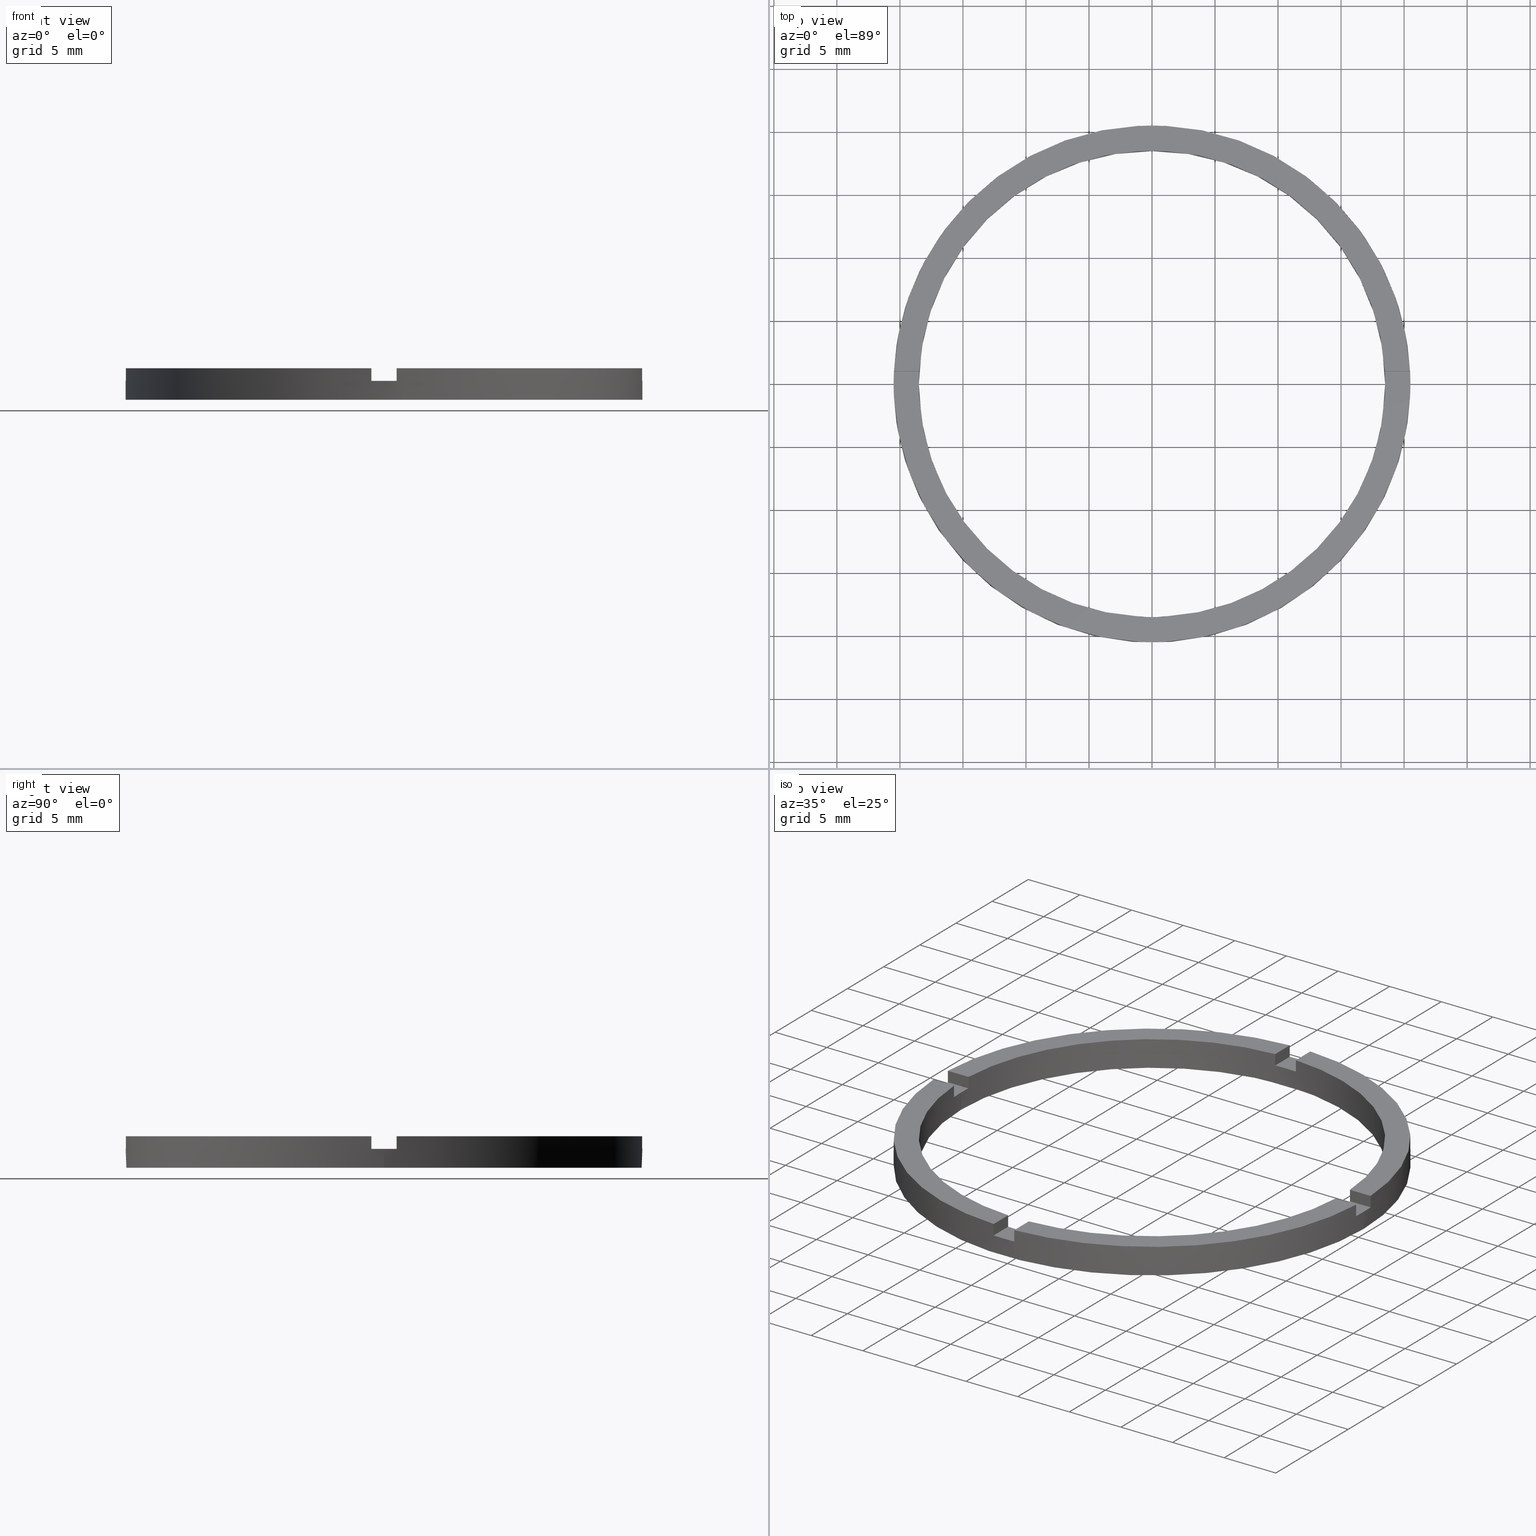
[diagram: canonical four-view strip — front | top / right | iso, engineering-drawing reading convention]
A machine part, canonical four-view strip (front | top / right | iso — engineering-drawing reading convention). The complete STEP part file that produces these views, byte-faithful:
ISO-10303-21;
HEADER;
FILE_DESCRIPTION (( 'STEP AP203' ),
    '1' );
FILE_NAME ('514087.step',
    '2024-12-26T02:36:17',
    ( 'MSI' ),
    ( '' ),
    'SwSTEP 2.0',
    'SolidWorks 2020',
    '' );
FILE_SCHEMA (( 'CONFIG_CONTROL_DESIGN' ));
ENDSEC;

DATA;
#1 = CIRCLE ( 'NONE', #116, 18.50000000000000000 ) ;
#2 = DIRECTION ( 'NONE',  ( 1.000000000000000000, 1.734723475976806848E-16, 0.000000000000000000 ) ) ;
#3 = FACE_OUTER_BOUND ( 'NONE', #505, .T. ) ;
#4 = DIRECTION ( 'NONE',  ( 1.000000000000000000, 0.000000000000000000, 0.000000000000000000 ) ) ;
#5 = CIRCLE ( 'NONE', #503, 20.50000000000000000 ) ;
#6 = DIRECTION ( 'NONE',  ( 1.000000000000000000, 0.000000000000000000, -0.000000000000000000 ) ) ;
#7 = CARTESIAN_POINT ( 'NONE',  ( 0.9999999999998371303, -10.50000000000018119, 2.500000000000000000 ) ) ;
#8 = UNCERTAINTY_MEASURE_WITH_UNIT (LENGTH_MEASURE( 1.000000000000000082E-05 ), #580, 'distance_accuracy_value', 'NONE');
#9 = DIRECTION ( 'NONE',  ( 1.000000000000000000, 0.000000000000000000, 0.000000000000000000 ) ) ;
#10 = CARTESIAN_POINT ( 'NONE',  ( 0.9999999999998382405, -18.47295320191117440, 2.500000000000000000 ) ) ;
#11 = CARTESIAN_POINT ( 'NONE',  ( -10.50000000000018652, -1.000000000000023093, 1.500000000000000000 ) ) ;
#12 = CARTESIAN_POINT ( 'NONE',  ( 0.9999999999999740208, 20.47559522944326815, 2.500000000000000000 ) ) ;
#13 = CARTESIAN_POINT ( 'NONE',  ( -18.47295320191116375, -1.000000000000024425, 2.500000000000000000 ) ) ;
#14 = CARTESIAN_POINT ( 'NONE',  ( -20.47559522944327171, 0.9999999999999753530, 2.500000000000000000 ) ) ;
#15 = CALENDAR_DATE ( 2024, 26, 12 ) ;
#16 = DIRECTION ( 'NONE',  ( -0.000000000000000000, 0.000000000000000000, 1.000000000000000000 ) ) ;
#17 = COORDINATED_UNIVERSAL_TIME_OFFSET ( 8, 0, .AHEAD. ) ;
#18 = EDGE_CURVE ( 'NONE', #702, #478, #737, .T. ) ;
#19 = DIRECTION ( 'NONE',  ( -1.000000000000000000, -4.336808689942017120E-17, 0.000000000000000000 ) ) ;
#20 = DIRECTION ( 'NONE',  ( 0.000000000000000000, 1.000000000000000000, 0.000000000000000000 ) ) ;
#21 = PERSON_AND_ORGANIZATION ( #545, #595 ) ;
#22 = DATE_AND_TIME ( #31, #40 ) ;
#23 = DIRECTION ( 'NONE',  ( -1.000000000000000000, 0.000000000000000000, 0.000000000000000000 ) ) ;
#24 = EDGE_CURVE ( 'NONE', #485, #446, #227, .T. ) ;
#25 = COORDINATED_UNIVERSAL_TIME_OFFSET ( 8, 0, .AHEAD. ) ;
#26 = CARTESIAN_POINT ( 'NONE',  ( 10.49999999999999467, 0.9999999999998412381, 1.500000000000000000 ) ) ;
#27 = LOCAL_TIME ( 10, 36, 17.00000000000000000, #298 ) ;
#28 = CARTESIAN_POINT ( 'NONE',  ( 0.9999999999999744649, 10.50000000000000000, 2.500000000000000000 ) ) ;
#29 = EDGE_CURVE ( 'NONE', #166, #702, #738, .T. ) ;
#30 = AXIS2_PLACEMENT_3D ( 'NONE', #92, #51, #108 ) ;
#31 = CALENDAR_DATE ( 2024, 26, 12 ) ;
#32 = CARTESIAN_POINT ( 'NONE',  ( -20.50000000000000000, 0.000000000000000000, 2.500000000000000000 ) ) ;
#33 = COORDINATED_UNIVERSAL_TIME_OFFSET ( 8, 0, .AHEAD. ) ;
#34 = DIRECTION ( 'NONE',  ( 1.000000000000000000, 0.000000000000000000, 0.000000000000000000 ) ) ;
#35 = CARTESIAN_POINT ( 'NONE',  ( -1.000000000000025535, 20.47559522944326815, 2.500000000000000000 ) ) ;
#36 = CARTESIAN_POINT ( 'NONE',  ( 0.000000000000000000, 0.000000000000000000, 2.500000000000000000 ) ) ;
#37 = SHAPE_DEFINITION_REPRESENTATION ( #560, #247 ) ;
#38 = APPLICATION_CONTEXT ( 'configuration controlled 3d designs of mechanical parts and assemblies' ) ;
#39 = ADVANCED_FACE ( 'NONE', ( #750 ), #249, .F. ) ;
#40 = LOCAL_TIME ( 10, 36, 17.00000000000000000, #25 ) ;
#41 = EDGE_CURVE ( 'NONE', #464, #711, #510, .T. ) ;
#42 = CARTESIAN_POINT ( 'NONE',  ( 10.49999999999999467, 0.9999999999998412381, 2.500000000000000000 ) ) ;
#43 = DIRECTION ( 'NONE',  ( -0.000000000000000000, -0.000000000000000000, -1.000000000000000000 ) ) ;
#44 = ADVANCED_FACE ( 'NONE', ( #748 ), #91, .F. ) ;
#45 = PLANE ( 'NONE',  #783 ) ;
#46 = CC_DESIGN_DATE_AND_TIME_ASSIGNMENT ( #22, #552, ( #74 ) ) ;
#47 = DIRECTION ( 'NONE',  ( 1.000000000000000000, 1.734723475976806848E-16, -0.000000000000000000 ) ) ;
#48 = PLANE ( 'NONE',  #196 ) ;
#49 = DIRECTION ( 'NONE',  ( -0.000000000000000000, -0.000000000000000000, -1.000000000000000000 ) ) ;
#50 = EDGE_CURVE ( 'NONE', #668, #494, #242, .T. ) ;
#51 = DIRECTION ( 'NONE',  ( 0.000000000000000000, 0.000000000000000000, 1.000000000000000000 ) ) ;
#52 = EDGE_CURVE ( 'NONE', #703, #422, #261, .T. ) ;
#53 = CARTESIAN_POINT ( 'NONE',  ( 0.000000000000000000, 0.000000000000000000, 2.500000000000000000 ) ) ;
#54 = AXIS2_PLACEMENT_3D ( 'NONE', #75, #142, #241 ) ;
#55 = CARTESIAN_POINT ( 'NONE',  ( -1.000000000000025091, 20.47559522944326460, 2.500000000000000000 ) ) ;
#56 = APPROVAL_ROLE ( '' ) ;
#57 = PLANE ( 'NONE',  #383 ) ;
#58 = EDGE_CURVE ( 'NONE', #138, #402, #765, .T. ) ;
#59 = CARTESIAN_POINT ( 'NONE',  ( 0.9999999999999740208, 18.47295320191116019, 1.500000000000000000 ) ) ;
#60 = AXIS2_PLACEMENT_3D ( 'NONE', #121, #377, #285 ) ;
#61 = CARTESIAN_POINT ( 'NONE',  ( 0.9999999999999744649, 18.47295320191116375, 2.500000000000000000 ) ) ;
#62 = PERSON_AND_ORGANIZATION ( #545, #595 ) ;
#63 = CARTESIAN_POINT ( 'NONE',  ( 18.47295320191117085, 0.9999999999998416822, 2.500000000000000000 ) ) ;
#64 = SECURITY_CLASSIFICATION ( '', '', #173 ) ;
#65 = DIRECTION ( 'NONE',  ( 1.000000000000000000, 0.000000000000000000, 0.000000000000000000 ) ) ;
#66 = CARTESIAN_POINT ( 'NONE',  ( -20.47559522944326815, -1.000000000000024647, 2.500000000000000000 ) ) ;
#67 = APPROVAL_PERSON_ORGANIZATION ( #347, #169, #395 ) ;
#68 = CARTESIAN_POINT ( 'NONE',  ( 0.9999999999998377964, -18.47295320191117085, 2.500000000000000000 ) ) ;
#69 = EDGE_CURVE ( 'NONE', #138, #125, #1, .T. ) ;
#70 = APPROVAL_DATE_TIME ( #600, #169 ) ;
#71 = DIRECTION ( 'NONE',  ( -0.000000000000000000, -1.000000000000000000, -0.000000000000000000 ) ) ;
#72 = DIRECTION ( 'NONE',  ( 0.000000000000000000, 0.000000000000000000, 1.000000000000000000 ) ) ;
#73 = DIRECTION ( 'NONE',  ( -0.000000000000000000, -0.000000000000000000, -1.000000000000000000 ) ) ;
#74 = PRODUCT_DEFINITION ( 'δ֪', '', #638, #274 ) ;
#75 = CARTESIAN_POINT ( 'NONE',  ( 0.9999999999999744649, 10.50000000000000000, 1.500000000000000000 ) ) ;
#76 = DIRECTION ( 'NONE',  ( 1.000000000000000000, 0.000000000000000000, -0.000000000000000000 ) ) ;
#77 = AXIS2_PLACEMENT_3D ( 'NONE', #588, #634, #279 ) ;
#78 = DIRECTION ( 'NONE',  ( -0.000000000000000000, -0.000000000000000000, -1.000000000000000000 ) ) ;
#79 = DIRECTION ( 'NONE',  ( 0.000000000000000000, 0.000000000000000000, 1.000000000000000000 ) ) ;
#80 = EDGE_CURVE ( 'NONE', #650, #160, #5, .T. ) ;
#81 = DIRECTION ( 'NONE',  ( 1.000000000000000000, 0.000000000000000000, 0.000000000000000000 ) ) ;
#82 = DIRECTION ( 'NONE',  ( -0.000000000000000000, -0.000000000000000000, -1.000000000000000000 ) ) ;
#83 = VECTOR ( 'NONE', #218, 1000.000000000000000 ) ;
#84 = AXIS2_PLACEMENT_3D ( 'NONE', #122, #23, #345 ) ;
#85 = APPROVAL_STATUS ( 'not_yet_approved' ) ;
#86 = CC_DESIGN_APPROVAL ( #761, ( #64 ) ) ;
#87 = AXIS2_PLACEMENT_3D ( 'NONE', #778, #670, #343 ) ;
#88 = ADVANCED_FACE ( 'NONE', ( #558 ), #712, .F. ) ;
#89 = VECTOR ( 'NONE', #73, 1000.000000000000000 ) ;
#90 = CARTESIAN_POINT ( 'NONE',  ( -1.000000000000162759, -10.50000000000018119, 1.500000000000000000 ) ) ;
#91 = PLANE ( 'NONE',  #307 ) ;
#92 = CARTESIAN_POINT ( 'NONE',  ( 0.000000000000000000, 0.000000000000000000, 2.500000000000000000 ) ) ;
#93 = AXIS2_PLACEMENT_3D ( 'NONE', #327, #428, #6 ) ;
#94 = CIRCLE ( 'NONE', #215, 18.50000000000000000 ) ;
#95 = CARTESIAN_POINT ( 'NONE',  ( 18.47295320191115309, -1.000000000000158318, 2.500000000000000000 ) ) ;
#96 = VECTOR ( 'NONE', #78, 1000.000000000000000 ) ;
#97 = CARTESIAN_POINT ( 'NONE',  ( 0.000000000000000000, 0.000000000000000000, 2.500000000000000000 ) ) ;
#98 = CARTESIAN_POINT ( 'NONE',  ( -1.000000000000025091, 18.47295320191116019, 2.500000000000000000 ) ) ;
#99 = AXIS2_PLACEMENT_3D ( 'NONE', #26, #488, #19 ) ;
#100 = CIRCLE ( 'NONE', #356, 18.50000000000000000 ) ;
#101 = LINE ( 'NONE', #763, #89 ) ;
#102 = EDGE_CURVE ( 'NONE', #491, #476, #293, .T. ) ;
#103 = DIRECTION ( 'NONE',  ( -0.000000000000000000, -0.000000000000000000, -1.000000000000000000 ) ) ;
#104 = DIRECTION ( 'NONE',  ( 1.000000000000000000, 0.000000000000000000, -0.000000000000000000 ) ) ;
#105 = FACE_BOUND ( 'NONE', #693, .T. ) ;
#106 = VECTOR ( 'NONE', #546, 1000.000000000000000 ) ;
#107 = DIRECTION ( 'NONE',  ( 0.000000000000000000, 0.000000000000000000, 1.000000000000000000 ) ) ;
#108 = DIRECTION ( 'NONE',  ( 1.000000000000000000, 0.000000000000000000, 0.000000000000000000 ) ) ;
#109 = DIRECTION ( 'NONE',  ( -1.301042606982605074E-16, 1.000000000000000000, -0.000000000000000000 ) ) ;
#110 =( GEOMETRIC_REPRESENTATION_CONTEXT ( 3 ) GLOBAL_UNCERTAINTY_ASSIGNED_CONTEXT ( ( #8 ) ) GLOBAL_UNIT_ASSIGNED_CONTEXT ( ( #580, #256, #351 ) ) REPRESENTATION_CONTEXT ( 'NONE', 'WORKASPACE' ) );
#111 = LINE ( 'NONE', #543, #482 ) ;
#112 = EDGE_CURVE ( 'NONE', #575, #476, #287, .T. ) ;
#113 = ADVANCED_FACE ( 'NONE', ( #3 ), #573, .T. ) ;
#114 = DIRECTION ( 'NONE',  ( -0.000000000000000000, 0.000000000000000000, 1.000000000000000000 ) ) ;
#115 = DIRECTION ( 'NONE',  ( 0.000000000000000000, 0.000000000000000000, 1.000000000000000000 ) ) ;
#116 = AXIS2_PLACEMENT_3D ( 'NONE', #468, #749, #9 ) ;
#117 = CARTESIAN_POINT ( 'NONE',  ( -20.50000000000000000, 0.000000000000000000, 1.500000000000000000 ) ) ;
#118 = CARTESIAN_POINT ( 'NONE',  ( 0.000000000000000000, 0.000000000000000000, 1.500000000000000000 ) ) ;
#119 = EDGE_CURVE ( 'NONE', #438, #246, #530, .T. ) ;
#120 = AXIS2_PLACEMENT_3D ( 'NONE', #599, #462, #604 ) ;
#121 = CARTESIAN_POINT ( 'NONE',  ( 0.000000000000000000, 0.000000000000000000, 2.500000000000000000 ) ) ;
#122 = CARTESIAN_POINT ( 'NONE',  ( -1.000000000000025535, 10.50000000000000000, 1.500000000000000000 ) ) ;
#123 = ORIENTED_EDGE ( 'NONE', *, *, #193, .F. ) ;
#124 = CARTESIAN_POINT ( 'NONE',  ( 0.000000000000000000, 0.000000000000000000, 2.500000000000000000 ) ) ;
#125 = VERTEX_POINT ( 'NONE', #393 ) ;
#126 = VECTOR ( 'NONE', #691, 1000.000000000000000 ) ;
#127 = CIRCLE ( 'NONE', #391, 18.50000000000000000 ) ;
#128 = ORIENTED_EDGE ( 'NONE', *, *, #449, .T. ) ;
#129 = DIRECTION ( 'NONE',  ( 1.000000000000000000, 0.000000000000000000, 0.000000000000000000 ) ) ;
#130 = LINE ( 'NONE', #286, #662 ) ;
#131 = ORIENTED_EDGE ( 'NONE', *, *, #539, .T. ) ;
#132 = EDGE_LOOP ( 'NONE', ( #688, #197, #252, #206 ) ) ;
#133 = CARTESIAN_POINT ( 'NONE',  ( 18.50000000000000000, 2.265596578422603396E-15, 1.500000000000000000 ) ) ;
#134 = VECTOR ( 'NONE', #47, 1000.000000000000000 ) ;
#135 = ORIENTED_EDGE ( 'NONE', *, *, #725, .T. ) ;
#136 = AXIS2_PLACEMENT_3D ( 'NONE', #475, #594, #4 ) ;
#137 = VECTOR ( 'NONE', #372, 1000.000000000000000 ) ;
#138 = VERTEX_POINT ( 'NONE', #396 ) ;
#139 = ORIENTED_EDGE ( 'NONE', *, *, #492, .F. ) ;
#140 = CIRCLE ( 'NONE', #120, 20.50000000000000000 ) ;
#141 = ORIENTED_EDGE ( 'NONE', *, *, #536, .T. ) ;
#142 = DIRECTION ( 'NONE',  ( 1.000000000000000000, -0.000000000000000000, 0.000000000000000000 ) ) ;
#143 = ORIENTED_EDGE ( 'NONE', *, *, #717, .F. ) ;
#144 = ORIENTED_EDGE ( 'NONE', *, *, #355, .F. ) ;
#145 = CARTESIAN_POINT ( 'NONE',  ( 18.47295320191115309, -1.000000000000158318, 2.500000000000000000 ) ) ;
#146 = VECTOR ( 'NONE', #71, 1000.000000000000000 ) ;
#147 = ORIENTED_EDGE ( 'NONE', *, *, #581, .T. ) ;
#148 = ORIENTED_EDGE ( 'NONE', *, *, #725, .F. ) ;
#149 = LINE ( 'NONE', #10, #400 ) ;
#150 = ORIENTED_EDGE ( 'NONE', *, *, #717, .T. ) ;
#151 = CC_DESIGN_APPROVAL ( #772, ( #638 ) ) ;
#152 = VECTOR ( 'NONE', #360, 1000.000000000000000 ) ;
#153 = ORIENTED_EDGE ( 'NONE', *, *, #522, .F. ) ;
#154 = ORIENTED_EDGE ( 'NONE', *, *, #50, .F. ) ;
#155 = VECTOR ( 'NONE', #366, 1000.000000000000000 ) ;
#156 = EDGE_CURVE ( 'NONE', #450, #648, #258, .T. ) ;
#157 = CARTESIAN_POINT ( 'NONE',  ( 20.47559522944326460, -1.000000000000158318, 1.500000000000000000 ) ) ;
#158 = FACE_OUTER_BOUND ( 'NONE', #694, .T. ) ;
#159 = LINE ( 'NONE', #563, #433 ) ;
#160 = VERTEX_POINT ( 'NONE', #747 ) ;
#161 = ORIENTED_EDGE ( 'NONE', *, *, #112, .T. ) ;
#162 = ORIENTED_EDGE ( 'NONE', *, *, #449, .F. ) ;
#163 = ORIENTED_EDGE ( 'NONE', *, *, #487, .T. ) ;
#164 = DIRECTION ( 'NONE',  ( 0.000000000000000000, 0.000000000000000000, 1.000000000000000000 ) ) ;
#165 = ORIENTED_EDGE ( 'NONE', *, *, #627, .T. ) ;
#166 = VERTEX_POINT ( 'NONE', #59 ) ;
#167 = ADVANCED_FACE ( 'NONE', ( #262 ), #57, .F. ) ;
#168 = DIRECTION ( 'NONE',  ( -0.000000000000000000, -0.000000000000000000, -1.000000000000000000 ) ) ;
#169 = APPROVAL ( #587, 'δָ��' ) ;
#170 = EDGE_LOOP ( 'NONE', ( #477, #208, #234, #415 ) ) ;
#171 = ORIENTED_EDGE ( 'NONE', *, *, #296, .F. ) ;
#172 = ORIENTED_EDGE ( 'NONE', *, *, #434, .T. ) ;
#173 = SECURITY_CLASSIFICATION_LEVEL ( 'unclassified' ) ;
#174 = EDGE_CURVE ( 'NONE', #575, #494, #511, .T. ) ;
#175 = ORIENTED_EDGE ( 'NONE', *, *, #644, .T. ) ;
#176 = ORIENTED_EDGE ( 'NONE', *, *, #556, .T. ) ;
#177 = ORIENTED_EDGE ( 'NONE', *, *, #333, .T. ) ;
#178 = DIRECTION ( 'NONE',  ( -1.000000000000000000, -1.301042606982605074E-16, 0.000000000000000000 ) ) ;
#179 = EDGE_LOOP ( 'NONE', ( #187, #729 ) ) ;
#180 = ORIENTED_EDGE ( 'NONE', *, *, #779, .T. ) ;
#181 = ORIENTED_EDGE ( 'NONE', *, *, #779, .F. ) ;
#182 = EDGE_LOOP ( 'NONE', ( #744, #453, #200, #684 ) ) ;
#183 = ADVANCED_FACE ( 'NONE', ( #236 ), #314, .T. ) ;
#184 = PERSON_AND_ORGANIZATION_ROLE ( 'creator' ) ;
#185 = ORIENTED_EDGE ( 'NONE', *, *, #41, .T. ) ;
#186 = EDGE_CURVE ( 'NONE', #203, #682, #239, .T. ) ;
#187 = ORIENTED_EDGE ( 'NONE', *, *, #581, .F. ) ;
#188 = ORIENTED_EDGE ( 'NONE', *, *, #18, .F. ) ;
#189 = CARTESIAN_POINT ( 'NONE',  ( -1.000000000000162759, -10.50000000000018119, 2.500000000000000000 ) ) ;
#190 = LINE ( 'NONE', #484, #598 ) ;
#191 = ORIENTED_EDGE ( 'NONE', *, *, #644, .F. ) ;
#192 = EDGE_LOOP ( 'NONE', ( #724, #512, #467, #148 ) ) ;
#193 = EDGE_CURVE ( 'NONE', #438, #478, #742, .T. ) ;
#194 = EDGE_LOOP ( 'NONE', ( #171, #740, #141, #654 ) ) ;
#195 = ORIENTED_EDGE ( 'NONE', *, *, #266, .T. ) ;
#196 = AXIS2_PLACEMENT_3D ( 'NONE', #97, #317, #288 ) ;
#197 = ORIENTED_EDGE ( 'NONE', *, *, #624, .T. ) ;
#198 = ORIENTED_EDGE ( 'NONE', *, *, #574, .F. ) ;
#199 = ORIENTED_EDGE ( 'NONE', *, *, #596, .T. ) ;
#200 = ORIENTED_EDGE ( 'NONE', *, *, #611, .F. ) ;
#201 = CARTESIAN_POINT ( 'NONE',  ( 0.9999999999998380185, -20.47559522944327526, 2.500000000000000000 ) ) ;
#202 = CLOSED_SHELL ( 'NONE', ( #39, #437, #564, #605, #205, #183, #743, #312, #723, #555, #88, #113, #167, #535, #330, #637, #44, #259, #322, #365, #452 ) ) ;
#203 = VERTEX_POINT ( 'NONE', #397 ) ;
#204 = CARTESIAN_POINT ( 'NONE',  ( -1.000000000000161871, -18.47295320191115309, 2.500000000000000000 ) ) ;
#205 = ADVANCED_FACE ( 'NONE', ( #516 ), #45, .T. ) ;
#206 = ORIENTED_EDGE ( 'NONE', *, *, #556, .F. ) ;
#207 = ORIENTED_EDGE ( 'NONE', *, *, #328, .T. ) ;
#208 = ORIENTED_EDGE ( 'NONE', *, *, #52, .T. ) ;
#209 = CARTESIAN_POINT ( 'NONE',  ( -10.50000000000018652, -1.000000000000023093, 2.500000000000000000 ) ) ;
#210 = EDGE_LOOP ( 'NONE', ( #526, #689, #177, #528, #439, #461, #199, #427, #165, #699, #661, #147 ) ) ;
#211 = DIRECTION ( 'NONE',  ( 1.000000000000000000, 1.301042606982605074E-16, 0.000000000000000000 ) ) ;
#212 = ORIENTED_EDGE ( 'NONE', *, *, #758, .F. ) ;
#213 = CARTESIAN_POINT ( 'NONE',  ( -1.000000000000025091, 20.47559522944326460, 1.500000000000000000 ) ) ;
#214 = ORIENTED_EDGE ( 'NONE', *, *, #566, .F. ) ;
#215 = AXIS2_PLACEMENT_3D ( 'NONE', #549, #367, #618 ) ;
#216 = VERTEX_POINT ( 'NONE', #636 ) ;
#217 = DIRECTION ( 'NONE',  ( 1.000000000000000000, 0.000000000000000000, 0.000000000000000000 ) ) ;
#218 = DIRECTION ( 'NONE',  ( 0.000000000000000000, 0.000000000000000000, 1.000000000000000000 ) ) ;
#219 = CARTESIAN_POINT ( 'NONE',  ( 20.47559522944326460, -1.000000000000158318, 2.500000000000000000 ) ) ;
#220 = DIRECTION ( 'NONE',  ( 1.000000000000000000, 0.000000000000000000, 0.000000000000000000 ) ) ;
#221 = ORIENTED_EDGE ( 'NONE', *, *, #119, .T. ) ;
#222 = CARTESIAN_POINT ( 'NONE',  ( 0.000000000000000000, 0.000000000000000000, 1.500000000000000000 ) ) ;
#223 = CARTESIAN_POINT ( 'NONE',  ( -1.000000000000161648, -20.47559522944326105, 2.500000000000000000 ) ) ;
#224 = EDGE_LOOP ( 'NONE', ( #181, #458, #250, #463 ) ) ;
#225 = AXIS2_PLACEMENT_3D ( 'NONE', #619, #687, #764 ) ;
#226 = ORIENTED_EDGE ( 'NONE', *, *, #355, .T. ) ;
#227 = CIRCLE ( 'NONE', #225, 20.50000000000000000 ) ;
#228 = EDGE_LOOP ( 'NONE', ( #651, #131, #508, #489 ) ) ;
#229 = ORIENTED_EDGE ( 'NONE', *, *, #601, .T. ) ;
#230 = DIRECTION ( 'NONE',  ( -0.000000000000000000, -0.000000000000000000, -1.000000000000000000 ) ) ;
#231 = AXIS2_PLACEMENT_3D ( 'NONE', #36, #82, #770 ) ;
#232 = ORIENTED_EDGE ( 'NONE', *, *, #333, .F. ) ;
#233 = VECTOR ( 'NONE', #20, 1000.000000000000000 ) ;
#234 = ORIENTED_EDGE ( 'NONE', *, *, #272, .F. ) ;
#235 = DIRECTION ( 'NONE',  ( 1.000000000000000000, 1.734723475976806848E-16, -0.000000000000000000 ) ) ;
#236 = FACE_OUTER_BOUND ( 'NONE', #727, .T. ) ;
#237 = DIRECTION ( 'NONE',  ( 1.000000000000000000, 0.000000000000000000, 0.000000000000000000 ) ) ;
#238 = AXIS2_PLACEMENT_3D ( 'NONE', #375, #289, #486 ) ;
#239 = CIRCLE ( 'NONE', #436, 18.50000000000000000 ) ;
#240 = LINE ( 'NONE', #707, #243 ) ;
#241 = DIRECTION ( 'NONE',  ( 0.000000000000000000, 0.000000000000000000, -1.000000000000000000 ) ) ;
#242 = LINE ( 'NONE', #28, #521 ) ;
#243 = VECTOR ( 'NONE', #303, 1000.000000000000000 ) ;
#244 = DIRECTION ( 'NONE',  ( 0.000000000000000000, 0.000000000000000000, 1.000000000000000000 ) ) ;
#245 = EDGE_CURVE ( 'NONE', #665, #442, #517, .T. ) ;
#246 = VERTEX_POINT ( 'NONE', #98 ) ;
#247 = ADVANCED_BREP_SHAPE_REPRESENTATION ( '514087', ( #721, #591 ), #110 ) ;
#248 = CARTESIAN_POINT ( 'NONE',  ( 20.47559522944327881, 0.9999999999998416822, 2.500000000000000000 ) ) ;
#249 = CYLINDRICAL_SURFACE ( 'NONE', #656, 18.50000000000000000 ) ;
#250 = ORIENTED_EDGE ( 'NONE', *, *, #156, .F. ) ;
#251 = APPLICATION_CONTEXT ( 'configuration controlled 3d designs of mechanical parts and assemblies' ) ;
#252 = ORIENTED_EDGE ( 'NONE', *, *, #767, .F. ) ;
#253 = CIRCLE ( 'NONE', #270, 20.50000000000000000 ) ;
#254 = DIRECTION ( 'NONE',  ( -1.000000000000000000, -4.336808689942017120E-17, -0.000000000000000000 ) ) ;
#255 = LINE ( 'NONE', #42, #527 ) ;
#256 =( NAMED_UNIT ( * ) PLANE_ANGLE_UNIT ( ) SI_UNIT ( $, .RADIAN. ) );
#257 = LINE ( 'NONE', #398, #263 ) ;
#258 = LINE ( 'NONE', #7, #762 ) ;
#259 = ADVANCED_FACE ( 'NONE', ( #766 ), #514, .T. ) ;
#260 = DIRECTION ( 'NONE',  ( 0.000000000000000000, 0.000000000000000000, 1.000000000000000000 ) ) ;
#261 = LINE ( 'NONE', #63, #533 ) ;
#262 = FACE_OUTER_BOUND ( 'NONE', #683, .T. ) ;
#263 = VECTOR ( 'NONE', #504, 1000.000000000000000 ) ;
#264 = DIRECTION ( 'NONE',  ( 4.336808689942017120E-17, -1.000000000000000000, 0.000000000000000000 ) ) ;
#265 = CARTESIAN_POINT ( 'NONE',  ( 0.000000000000000000, 0.000000000000000000, 2.500000000000000000 ) ) ;
#266 = EDGE_CURVE ( 'NONE', #715, #491, #253, .T. ) ;
#267 = PLANE ( 'NONE',  #726 ) ;
#268 = EDGE_CURVE ( 'NONE', #575, #703, #255, .T. ) ;
#269 = VECTOR ( 'NONE', #235, 1000.000000000000000 ) ;
#270 = AXIS2_PLACEMENT_3D ( 'NONE', #562, #731, #782 ) ;
#271 = DIRECTION ( 'NONE',  ( 1.000000000000000000, 0.000000000000000000, 0.000000000000000000 ) ) ;
#272 = EDGE_CURVE ( 'NONE', #476, #422, #240, .T. ) ;
#273 = DIRECTION ( 'NONE',  ( -1.301042606982605074E-16, 1.000000000000000000, 0.000000000000000000 ) ) ;
#274 = DESIGN_CONTEXT ( 'detailed design', #38, 'design' ) ;
#275 = CARTESIAN_POINT ( 'NONE',  ( -1.000000000000025535, 10.50000000000000000, 2.500000000000000000 ) ) ;
#276 = DIRECTION ( 'NONE',  ( -1.000000000000000000, 0.000000000000000000, 0.000000000000000000 ) ) ;
#277 = AXIS2_PLACEMENT_3D ( 'NONE', #542, #282, #570 ) ;
#278 = CARTESIAN_POINT ( 'NONE',  ( 0.000000000000000000, 0.000000000000000000, 2.500000000000000000 ) ) ;
#279 = DIRECTION ( 'NONE',  ( -1.000000000000000000, -1.734723475976806848E-16, 0.000000000000000000 ) ) ;
#280 = CARTESIAN_POINT ( 'NONE',  ( 20.47559522944327881, 0.9999999999998416822, 2.500000000000000000 ) ) ;
#281 = CYLINDRICAL_SURFACE ( 'NONE', #231, 20.50000000000000000 ) ;
#282 = DIRECTION ( 'NONE',  ( 0.000000000000000000, 0.000000000000000000, 1.000000000000000000 ) ) ;
#283 = DIRECTION ( 'NONE',  ( -0.000000000000000000, -0.000000000000000000, -1.000000000000000000 ) ) ;
#284 = AXIS2_PLACEMENT_3D ( 'NONE', #124, #283, #340 ) ;
#285 = DIRECTION ( 'NONE',  ( 1.000000000000000000, 0.000000000000000000, -0.000000000000000000 ) ) ;
#286 = CARTESIAN_POINT ( 'NONE',  ( -18.47295320191116375, 0.9999999999999754641, 2.500000000000000000 ) ) ;
#287 = LINE ( 'NONE', #248, #557 ) ;
#288 = DIRECTION ( 'NONE',  ( 1.000000000000000000, 0.000000000000000000, -0.000000000000000000 ) ) ;
#289 = DIRECTION ( 'NONE',  ( 0.000000000000000000, -0.000000000000000000, 1.000000000000000000 ) ) ;
#290 = AXIS2_PLACEMENT_3D ( 'NONE', #547, #756, #760 ) ;
#291 = CARTESIAN_POINT ( 'NONE',  ( 0.9999999999999744649, 20.47559522944327171, 2.500000000000000000 ) ) ;
#292 = CARTESIAN_POINT ( 'NONE',  ( 0.9999999999999744649, 10.50000000000000000, 1.500000000000000000 ) ) ;
#293 = CIRCLE ( 'NONE', #551, 20.50000000000000000 ) ;
#294 = CARTESIAN_POINT ( 'NONE',  ( 0.000000000000000000, 0.000000000000000000, 1.500000000000000000 ) ) ;
#295 = DIRECTION ( 'NONE',  ( 0.000000000000000000, 0.000000000000000000, 1.000000000000000000 ) ) ;
#296 = EDGE_CURVE ( 'NONE', #665, #650, #257, .T. ) ;
#297 = APPROVAL_DATE_TIME ( #323, #761 ) ;
#298 = COORDINATED_UNIVERSAL_TIME_OFFSET ( 8, 0, .AHEAD. ) ;
#299 = APPLICATION_PROTOCOL_DEFINITION ( 'international standard', 'config_control_design', 1994, #38 ) ;
#300 = EDGE_CURVE ( 'NONE', #409, #497, #755, .T. ) ;
#301 = APPROVAL_PERSON_ORGANIZATION ( #305, #772, #56 ) ;
#302 = DIRECTION ( 'NONE',  ( 1.000000000000000000, 0.000000000000000000, -0.000000000000000000 ) ) ;
#303 = DIRECTION ( 'NONE',  ( -1.000000000000000000, -4.336808689942017120E-17, -0.000000000000000000 ) ) ;
#304 = PRODUCT_RELATED_PRODUCT_CATEGORY ( 'detail', '', ( #559 ) ) ;
#305 = PERSON_AND_ORGANIZATION ( #545, #595 ) ;
#306 = APPLICATION_PROTOCOL_DEFINITION ( 'international standard', 'config_control_design', 1994, #251 ) ;
#307 = AXIS2_PLACEMENT_3D ( 'NONE', #780, #264, #416 ) ;
#308 = APPROVAL_ROLE ( '' ) ;
#309 = CARTESIAN_POINT ( 'NONE',  ( 0.000000000000000000, 0.000000000000000000, 2.500000000000000000 ) ) ;
#310 = EDGE_CURVE ( 'NONE', #457, #715, #751, .T. ) ;
#311 = CARTESIAN_POINT ( 'NONE',  ( 0.9999999999998371303, -10.50000000000018119, 1.500000000000000000 ) ) ;
#312 = ADVANCED_FACE ( 'NONE', ( #752 ), #281, .T. ) ;
#313 = AXIS2_PLACEMENT_3D ( 'NONE', #498, #586, #348 ) ;
#314 = PLANE ( 'NONE',  #561 ) ;
#315 = LOCAL_TIME ( 10, 36, 17.00000000000000000, #33 ) ;
#316 = CC_DESIGN_PERSON_AND_ORGANIZATION_ASSIGNMENT ( #565, #184, ( #638 ) ) ;
#317 = DIRECTION ( 'NONE',  ( 0.000000000000000000, 0.000000000000000000, 1.000000000000000000 ) ) ;
#318 = CALENDAR_DATE ( 2024, 26, 12 ) ;
#319 = EDGE_CURVE ( 'NONE', #648, #507, #771, .T. ) ;
#320 = DATE_AND_TIME ( #318, #315 ) ;
#321 = DATE_AND_TIME ( #15, #577 ) ;
#322 = ADVANCED_FACE ( 'NONE', ( #544 ), #548, .F. ) ;
#323 = DATE_AND_TIME ( #579, #27 ) ;
#324 = APPROVAL_DATE_TIME ( #320, #772 ) ;
#325 = ORIENTED_EDGE ( 'NONE', *, *, #156, .T. ) ;
#326 = APPROVAL_PERSON_ORGANIZATION ( #21, #761, #308 ) ;
#327 = CARTESIAN_POINT ( 'NONE',  ( 0.000000000000000000, 0.000000000000000000, 1.500000000000000000 ) ) ;
#328 = EDGE_CURVE ( 'NONE', #711, #216, #776, .T. ) ;
#329 = CARTESIAN_POINT ( 'NONE',  ( 0.9999999999998371303, -10.50000000000018119, 1.500000000000000000 ) ) ;
#330 = ADVANCED_FACE ( 'NONE', ( #657 ), #371, .T. ) ;
#331 = CARTESIAN_POINT ( 'NONE',  ( -20.47559522944326815, -1.000000000000024647, 2.500000000000000000 ) ) ;
#332 = DIRECTION ( 'NONE',  ( 1.000000000000000000, 0.000000000000000000, 0.000000000000000000 ) ) ;
#333 = EDGE_CURVE ( 'NONE', #715, #403, #417, .T. ) ;
#334 = AXIS2_PLACEMENT_3D ( 'NONE', #495, #335, #623 ) ;
#335 = DIRECTION ( 'NONE',  ( 0.000000000000000000, -0.000000000000000000, 1.000000000000000000 ) ) ;
#336 = DIRECTION ( 'NONE',  ( 0.000000000000000000, 0.000000000000000000, 1.000000000000000000 ) ) ;
#337 = DIRECTION ( 'NONE',  ( -0.000000000000000000, 0.000000000000000000, 1.000000000000000000 ) ) ;
#338 = CARTESIAN_POINT ( 'NONE',  ( -20.47559522944327171, 0.9999999999999753530, 1.500000000000000000 ) ) ;
#339 = DIRECTION ( 'NONE',  ( 1.000000000000000000, 4.336808689942017120E-17, 0.000000000000000000 ) ) ;
#340 = DIRECTION ( 'NONE',  ( -1.000000000000000000, 0.000000000000000000, 0.000000000000000000 ) ) ;
#341 = PLANE ( 'NONE',  #734 ) ;
#342 = LOCAL_TIME ( 10, 36, 17.00000000000000000, #350 ) ;
#343 = DIRECTION ( 'NONE',  ( 1.000000000000000000, 0.000000000000000000, -0.000000000000000000 ) ) ;
#344 = CALENDAR_DATE ( 2024, 26, 12 ) ;
#345 = DIRECTION ( 'NONE',  ( 0.000000000000000000, 0.000000000000000000, 1.000000000000000000 ) ) ;
#346 = DIRECTION ( 'NONE',  ( -1.000000000000000000, -1.734723475976806848E-16, 0.000000000000000000 ) ) ;
#347 = PERSON_AND_ORGANIZATION ( #545, #595 ) ;
#348 = DIRECTION ( 'NONE',  ( 1.000000000000000000, 0.000000000000000000, 0.000000000000000000 ) ) ;
#349 = CC_DESIGN_PERSON_AND_ORGANIZATION_ASSIGNMENT ( #576, #592, ( #64 ) ) ;
#350 = COORDINATED_UNIVERSAL_TIME_OFFSET ( 8, 0, .AHEAD. ) ;
#351 =( NAMED_UNIT ( * ) SI_UNIT ( $, .STERADIAN. ) SOLID_ANGLE_UNIT ( ) );
#352 = PERSON_AND_ORGANIZATION ( #545, #595 ) ;
#353 = CARTESIAN_POINT ( 'NONE',  ( 0.000000000000000000, 0.000000000000000000, 2.500000000000000000 ) ) ;
#354 = DIRECTION ( 'NONE',  ( 0.000000000000000000, 0.000000000000000000, 1.000000000000000000 ) ) ;
#355 = EDGE_CURVE ( 'NONE', #138, #674, #130, .T. ) ;
#356 = AXIS2_PLACEMENT_3D ( 'NONE', #610, #672, #757 ) ;
#357 = CIRCLE ( 'NONE', #666, 20.50000000000000000 ) ;
#358 = DIRECTION ( 'NONE',  ( 1.734723475976806848E-16, -1.000000000000000000, 0.000000000000000000 ) ) ;
#359 = EDGE_CURVE ( 'NONE', #478, #709, #426, .T. ) ;
#360 = DIRECTION ( 'NONE',  ( -1.301042606982605074E-16, 1.000000000000000000, -0.000000000000000000 ) ) ;
#361 = LINE ( 'NONE', #441, #614 ) ;
#362 = LINE ( 'NONE', #331, #622 ) ;
#363 = CARTESIAN_POINT ( 'NONE',  ( 0.000000000000000000, 0.000000000000000000, 2.500000000000000000 ) ) ;
#364 = DIRECTION ( 'NONE',  ( -0.000000000000000000, -1.000000000000000000, -0.000000000000000000 ) ) ;
#365 = ADVANCED_FACE ( 'NONE', ( #659 ), #768, .F. ) ;
#366 = DIRECTION ( 'NONE',  ( 1.301042606982605074E-16, -1.000000000000000000, 0.000000000000000000 ) ) ;
#367 = DIRECTION ( 'NONE',  ( 0.000000000000000000, 0.000000000000000000, 1.000000000000000000 ) ) ;
#368 = LINE ( 'NONE', #32, #96 ) ;
#369 = DIRECTION ( 'NONE',  ( 0.000000000000000000, 0.000000000000000000, 1.000000000000000000 ) ) ;
#370 = CIRCLE ( 'NONE', #411, 18.50000000000000000 ) ;
#371 = PLANE ( 'NONE',  #646 ) ;
#372 = DIRECTION ( 'NONE',  ( -0.000000000000000000, -0.000000000000000000, -1.000000000000000000 ) ) ;
#373 = LINE ( 'NONE', #223, #386 ) ;
#374 = CARTESIAN_POINT ( 'NONE',  ( -1.000000000000161426, -18.47295320191114953, 1.500000000000000000 ) ) ;
#375 = CARTESIAN_POINT ( 'NONE',  ( 0.000000000000000000, 0.000000000000000000, 1.500000000000000000 ) ) ;
#376 = CIRCLE ( 'NONE', #290, 18.50000000000000000 ) ;
#377 = DIRECTION ( 'NONE',  ( 0.000000000000000000, 0.000000000000000000, 1.000000000000000000 ) ) ;
#378 = CIRCLE ( 'NONE', #30, 18.50000000000000000 ) ;
#379 = CIRCLE ( 'NONE', #531, 18.50000000000000000 ) ;
#380 = DIRECTION ( 'NONE',  ( 0.000000000000000000, 0.000000000000000000, 1.000000000000000000 ) ) ;
#381 = EDGE_CURVE ( 'NONE', #402, #464, #423, .T. ) ;
#382 = CARTESIAN_POINT ( 'NONE',  ( 0.9999999999998377964, -18.47295320191117085, 1.500000000000000000 ) ) ;
#383 = AXIS2_PLACEMENT_3D ( 'NONE', #329, #211, #273 ) ;
#384 = FACE_OUTER_BOUND ( 'NONE', #697, .T. ) ;
#385 = CARTESIAN_POINT ( 'NONE',  ( -1.000000000000025091, 18.47295320191116019, 1.500000000000000000 ) ) ;
#386 = VECTOR ( 'NONE', #336, 1000.000000000000000 ) ;
#387 = LINE ( 'NONE', #291, #106 ) ;
#388 = CARTESIAN_POINT ( 'NONE',  ( -1.000000000000161204, -20.47559522944325749, 1.500000000000000000 ) ) ;
#389 = VECTOR ( 'NONE', #244, 1000.000000000000000 ) ;
#390 = CARTESIAN_POINT ( 'NONE',  ( 0.000000000000000000, 0.000000000000000000, 1.500000000000000000 ) ) ;
#391 = AXIS2_PLACEMENT_3D ( 'NONE', #53, #107, #271 ) ;
#392 = CARTESIAN_POINT ( 'NONE',  ( -18.47295320191116375, 0.9999999999999754641, 2.500000000000000000 ) ) ;
#393 = CARTESIAN_POINT ( 'NONE',  ( -18.50000000000000000, 0.000000000000000000, 1.500000000000000000 ) ) ;
#394 = CARTESIAN_POINT ( 'NONE',  ( -1.000000000000025535, 10.50000000000000000, 1.500000000000000000 ) ) ;
#395 = APPROVAL_ROLE ( '' ) ;
#396 = CARTESIAN_POINT ( 'NONE',  ( -18.47295320191116375, 0.9999999999999754641, 1.500000000000000000 ) ) ;
#397 = CARTESIAN_POINT ( 'NONE',  ( 18.50000000000000000, 2.265596578422603396E-15, 0.000000000000000000 ) ) ;
#398 = CARTESIAN_POINT ( 'NONE',  ( -1.000000000000162759, -10.50000000000018119, 1.500000000000000000 ) ) ;
#399 = ORIENTED_EDGE ( 'NONE', *, *, #603, .T. ) ;
#400 = VECTOR ( 'NONE', #49, 1000.000000000000000 ) ;
#401 = LINE ( 'NONE', #523, #137 ) ;
#402 = VERTEX_POINT ( 'NONE', #338 ) ;
#403 = VERTEX_POINT ( 'NONE', #616 ) ;
#404 = DIRECTION ( 'NONE',  ( -1.000000000000000000, 0.000000000000000000, 0.000000000000000000 ) ) ;
#405 = FACE_OUTER_BOUND ( 'NONE', #182, .T. ) ;
#406 = EDGE_LOOP ( 'NONE', ( #175, #722, #448, #455, #172, #162, #432, #515, #496, #153, #680, #212 ) ) ;
#407 = DIRECTION ( 'NONE',  ( 0.000000000000000000, 0.000000000000000000, 1.000000000000000000 ) ) ;
#408 = VECTOR ( 'NONE', #746, 1000.000000000000000 ) ;
#409 = VERTEX_POINT ( 'NONE', #66 ) ;
#410 = ORIENTED_EDGE ( 'NONE', *, *, #359, .F. ) ;
#411 = AXIS2_PLACEMENT_3D ( 'NONE', #582, #295, #237 ) ;
#412 = VECTOR ( 'NONE', #115, 1000.000000000000000 ) ;
#413 = ORIENTED_EDGE ( 'NONE', *, *, #611, .T. ) ;
#414 = PLANE ( 'NONE',  #583 ) ;
#415 = ORIENTED_EDGE ( 'NONE', *, *, #112, .F. ) ;
#416 = DIRECTION ( 'NONE',  ( 1.000000000000000000, 4.336808689942017120E-17, 0.000000000000000000 ) ) ;
#417 = LINE ( 'NONE', #219, #126 ) ;
#418 = ORIENTED_EDGE ( 'NONE', *, *, #69, .F. ) ;
#419 = CARTESIAN_POINT ( 'NONE',  ( 0.000000000000000000, 0.000000000000000000, 1.500000000000000000 ) ) ;
#420 = FACE_OUTER_BOUND ( 'NONE', #690, .T. ) ;
#421 = VERTEX_POINT ( 'NONE', #382 ) ;
#422 = VERTEX_POINT ( 'NONE', #612 ) ;
#423 = CIRCLE ( 'NONE', #499, 20.50000000000000000 ) ;
#424 = VERTEX_POINT ( 'NONE', #675 ) ;
#425 = EDGE_CURVE ( 'NONE', #491, #485, #401, .T. ) ;
#426 = LINE ( 'NONE', #394, #146 ) ;
#427 = ORIENTED_EDGE ( 'NONE', *, *, #300, .F. ) ;
#428 = DIRECTION ( 'NONE',  ( 0.000000000000000000, -0.000000000000000000, 1.000000000000000000 ) ) ;
#429 = LINE ( 'NONE', #189, #155 ) ;
#430 = CARTESIAN_POINT ( 'NONE',  ( 0.000000000000000000, 0.000000000000000000, 0.000000000000000000 ) ) ;
#431 = FACE_OUTER_BOUND ( 'NONE', #132, .T. ) ;
#432 = ORIENTED_EDGE ( 'NONE', *, *, #664, .T. ) ;
#433 = VECTOR ( 'NONE', #537, 1000.000000000000000 ) ;
#434 = EDGE_CURVE ( 'NONE', #125, #216, #669, .T. ) ;
#435 = ORIENTED_EDGE ( 'NONE', *, *, #268, .F. ) ;
#436 = AXIS2_PLACEMENT_3D ( 'NONE', #430, #407, #81 ) ;
#437 = ADVANCED_FACE ( 'NONE', ( #420 ), #647, .T. ) ;
#438 = VERTEX_POINT ( 'NONE', #55 ) ;
#439 = ORIENTED_EDGE ( 'NONE', *, *, #492, .T. ) ;
#440 = PLANE ( 'NONE',  #93 ) ;
#441 = CARTESIAN_POINT ( 'NONE',  ( -18.50000000000000000, 0.000000000000000000, 2.500000000000000000 ) ) ;
#442 = VERTEX_POINT ( 'NONE', #571 ) ;
#443 = ORIENTED_EDGE ( 'NONE', *, *, #774, .T. ) ;
#444 = DIRECTION ( 'NONE',  ( -0.000000000000000000, -0.000000000000000000, -1.000000000000000000 ) ) ;
#445 = ORIENTED_EDGE ( 'NONE', *, *, #102, .F. ) ;
#446 = VERTEX_POINT ( 'NONE', #529 ) ;
#447 = ORIENTED_EDGE ( 'NONE', *, *, #58, .T. ) ;
#448 = ORIENTED_EDGE ( 'NONE', *, *, #593, .F. ) ;
#449 = EDGE_CURVE ( 'NONE', #720, #216, #159, .T. ) ;
#450 = VERTEX_POINT ( 'NONE', #201 ) ;
#451 = ORIENTED_EDGE ( 'NONE', *, *, #381, .F. ) ;
#452 = ADVANCED_FACE ( 'NONE', ( #405 ), #440, .T. ) ;
#453 = ORIENTED_EDGE ( 'NONE', *, *, #359, .T. ) ;
#454 = DIRECTION ( 'NONE',  ( 0.000000000000000000, 0.000000000000000000, 1.000000000000000000 ) ) ;
#455 = ORIENTED_EDGE ( 'NONE', *, *, #601, .F. ) ;
#456 = VECTOR ( 'NONE', #230, 1000.000000000000000 ) ;
#457 = VERTEX_POINT ( 'NONE', #639 ) ;
#458 = ORIENTED_EDGE ( 'NONE', *, *, #319, .F. ) ;
#459 = AXIS2_PLACEMENT_3D ( 'NONE', #265, #103, #276 ) ;
#460 = ORIENTED_EDGE ( 'NONE', *, *, #767, .T. ) ;
#461 = ORIENTED_EDGE ( 'NONE', *, *, #80, .F. ) ;
#462 = DIRECTION ( 'NONE',  ( 0.000000000000000000, 0.000000000000000000, 1.000000000000000000 ) ) ;
#463 = ORIENTED_EDGE ( 'NONE', *, *, #481, .T. ) ;
#464 = VERTEX_POINT ( 'NONE', #117 ) ;
#465 = ORIENTED_EDGE ( 'NONE', *, *, #310, .F. ) ;
#466 = CARTESIAN_POINT ( 'NONE',  ( -18.50000000000000000, 0.000000000000000000, 0.000000000000000000 ) ) ;
#467 = ORIENTED_EDGE ( 'NONE', *, *, #50, .T. ) ;
#468 = CARTESIAN_POINT ( 'NONE',  ( 0.000000000000000000, 0.000000000000000000, 1.500000000000000000 ) ) ;
#469 = ORIENTED_EDGE ( 'NONE', *, *, #620, .F. ) ;
#470 = ORIENTED_EDGE ( 'NONE', *, *, #186, .T. ) ;
#471 = ORIENTED_EDGE ( 'NONE', *, *, #272, .T. ) ;
#472 = PLANE ( 'NONE',  #60 ) ;
#473 = ORIENTED_EDGE ( 'NONE', *, *, #522, .T. ) ;
#474 = ORIENTED_EDGE ( 'NONE', *, *, #186, .F. ) ;
#475 = CARTESIAN_POINT ( 'NONE',  ( 0.000000000000000000, 0.000000000000000000, 1.500000000000000000 ) ) ;
#476 = VERTEX_POINT ( 'NONE', #735 ) ;
#477 = ORIENTED_EDGE ( 'NONE', *, *, #268, .T. ) ;
#478 = VERTEX_POINT ( 'NONE', #213 ) ;
#479 = PLANE ( 'NONE',  #99 ) ;
#480 = ORIENTED_EDGE ( 'NONE', *, *, #624, .F. ) ;
#481 = EDGE_CURVE ( 'NONE', #450, #403, #140, .T. ) ;
#482 = VECTOR ( 'NONE', #578, 1000.000000000000000 ) ;
#483 = EDGE_LOOP ( 'NONE', ( #195, #700, #471, #143, #191, #704 ) ) ;
#484 = CARTESIAN_POINT ( 'NONE',  ( 10.49999999999999467, -1.000000000000158762, 2.500000000000000000 ) ) ;
#485 = VERTEX_POINT ( 'NONE', #643 ) ;
#486 = DIRECTION ( 'NONE',  ( 1.000000000000000000, 0.000000000000000000, 0.000000000000000000 ) ) ;
#487 = EDGE_CURVE ( 'NONE', #409, #720, #649, .T. ) ;
#488 = DIRECTION ( 'NONE',  ( -4.336808689942017120E-17, 1.000000000000000000, 0.000000000000000000 ) ) ;
#489 = ORIENTED_EDGE ( 'NONE', *, *, #296, .T. ) ;
#490 = ORIENTED_EDGE ( 'NONE', *, *, #593, .T. ) ;
#491 = VERTEX_POINT ( 'NONE', #567 ) ;
#492 = EDGE_CURVE ( 'NONE', #450, #160, #676, .T. ) ;
#493 = ORIENTED_EDGE ( 'NONE', *, *, #425, .T. ) ;
#494 = VERTEX_POINT ( 'NONE', #12 ) ;
#495 = CARTESIAN_POINT ( 'NONE',  ( 0.000000000000000000, 0.000000000000000000, 1.500000000000000000 ) ) ;
#496 = ORIENTED_EDGE ( 'NONE', *, *, #753, .T. ) ;
#497 = VERTEX_POINT ( 'NONE', #730 ) ;
#498 = CARTESIAN_POINT ( 'NONE',  ( 0.000000000000000000, 0.000000000000000000, 2.500000000000000000 ) ) ;
#499 = AXIS2_PLACEMENT_3D ( 'NONE', #294, #72, #129 ) ;
#500 = PERSON_AND_ORGANIZATION_ROLE ( 'creator' ) ;
#501 = ORIENTED_EDGE ( 'NONE', *, *, #664, .F. ) ;
#502 = CARTESIAN_POINT ( 'NONE',  ( 0.000000000000000000, 0.000000000000000000, 2.500000000000000000 ) ) ;
#503 = AXIS2_PLACEMENT_3D ( 'NONE', #222, #114, #34 ) ;
#504 = DIRECTION ( 'NONE',  ( 1.301042606982605074E-16, -1.000000000000000000, 0.000000000000000000 ) ) ;
#505 = EDGE_LOOP ( 'NONE', ( #663, #185, #207, #685, #418, #447 ) ) ;
#506 = ORIENTED_EDGE ( 'NONE', *, *, #758, .T. ) ;
#507 = VERTEX_POINT ( 'NONE', #95 ) ;
#508 = ORIENTED_EDGE ( 'NONE', *, *, #753, .F. ) ;
#509 = DIRECTION ( 'NONE',  ( -0.000000000000000000, -0.000000000000000000, -1.000000000000000000 ) ) ;
#510 = CIRCLE ( 'NONE', #781, 20.50000000000000000 ) ;
#511 = CIRCLE ( 'NONE', #597, 20.50000000000000000 ) ;
#512 = ORIENTED_EDGE ( 'NONE', *, *, #566, .T. ) ;
#513 = DATE_TIME_ROLE ( 'classification_date' ) ;
#514 = PLANE ( 'NONE',  #540 ) ;
#515 = ORIENTED_EDGE ( 'NONE', *, *, #245, .F. ) ;
#516 = FACE_OUTER_BOUND ( 'NONE', #224, .T. ) ;
#517 = LINE ( 'NONE', #204, #525 ) ;
#518 = DIRECTION ( 'NONE',  ( 0.000000000000000000, 0.000000000000000000, 1.000000000000000000 ) ) ;
#519 = ORIENTED_EDGE ( 'NONE', *, *, #603, .F. ) ;
#520 = VECTOR ( 'NONE', #444, 1000.000000000000000 ) ;
#521 = VECTOR ( 'NONE', #550, 1000.000000000000000 ) ;
#522 = EDGE_CURVE ( 'NONE', #648, #421, #149, .T. ) ;
#523 = CARTESIAN_POINT ( 'NONE',  ( 20.50000000000000000, 2.510525938252074481E-15, 2.500000000000000000 ) ) ;
#524 = ORIENTED_EDGE ( 'NONE', *, *, #174, .F. ) ;
#525 = VECTOR ( 'NONE', #260, 1000.000000000000000 ) ;
#526 = ORIENTED_EDGE ( 'NONE', *, *, #425, .F. ) ;
#527 = VECTOR ( 'NONE', #254, 1000.000000000000000 ) ;
#528 = ORIENTED_EDGE ( 'NONE', *, *, #481, .F. ) ;
#529 = CARTESIAN_POINT ( 'NONE',  ( -20.50000000000000000, 0.000000000000000000, 0.000000000000000000 ) ) ;
#530 = LINE ( 'NONE', #275, #532 ) ;
#531 = AXIS2_PLACEMENT_3D ( 'NONE', #118, #16, #220 ) ;
#532 = VECTOR ( 'NONE', #364, 1000.000000000000000 ) ;
#533 = VECTOR ( 'NONE', #608, 1000.000000000000000 ) ;
#534 = PERSON_AND_ORGANIZATION_ROLE ( 'design_supplier' ) ;
#535 = ADVANCED_FACE ( 'NONE', ( #645 ), #414, .F. ) ;
#536 = EDGE_CURVE ( 'NONE', #442, #497, #429, .T. ) ;
#537 = DIRECTION ( 'NONE',  ( -0.000000000000000000, -0.000000000000000000, -1.000000000000000000 ) ) ;
#538 = CARTESIAN_POINT ( 'NONE',  ( -20.47559522944326815, -1.000000000000024647, 1.500000000000000000 ) ) ;
#539 = EDGE_CURVE ( 'NONE', #160, #421, #667, .T. ) ;
#540 = AXIS2_PLACEMENT_3D ( 'NONE', #419, #518, #640 ) ;
#541 = CARTESIAN_POINT ( 'NONE',  ( 0.000000000000000000, 0.000000000000000000, 0.000000000000000000 ) ) ;
#542 = CARTESIAN_POINT ( 'NONE',  ( 0.000000000000000000, 0.000000000000000000, 2.500000000000000000 ) ) ;
#543 = CARTESIAN_POINT ( 'NONE',  ( -10.50000000000018652, 0.9999999999999770184, 2.500000000000000000 ) ) ;
#544 = FACE_OUTER_BOUND ( 'NONE', #741, .T. ) ;
#545 = PERSON ( 'δָ��', 'δָ��', 'δָ��', ('δָ��'), ('δָ��'), ('δָ��') ) ;
#546 = DIRECTION ( 'NONE',  ( 0.000000000000000000, 0.000000000000000000, 1.000000000000000000 ) ) ;
#547 = CARTESIAN_POINT ( 'NONE',  ( 0.000000000000000000, 0.000000000000000000, 2.500000000000000000 ) ) ;
#548 = PLANE ( 'NONE',  #84 ) ;
#549 = CARTESIAN_POINT ( 'NONE',  ( 0.000000000000000000, 0.000000000000000000, 1.500000000000000000 ) ) ;
#550 = DIRECTION ( 'NONE',  ( 0.000000000000000000, 1.000000000000000000, 0.000000000000000000 ) ) ;
#551 = AXIS2_PLACEMENT_3D ( 'NONE', #628, #79, #217 ) ;
#552 = DATE_TIME_ROLE ( 'creation_date' ) ;
#553 = CARTESIAN_POINT ( 'NONE',  ( 0.000000000000000000, 0.000000000000000000, 1.500000000000000000 ) ) ;
#554 = VECTOR ( 'NONE', #346, 1000.000000000000000 ) ;
#555 = ADVANCED_FACE ( 'NONE', ( #158 ), #267, .F. ) ;
#556 = EDGE_CURVE ( 'NONE', #246, #674, #127, .T. ) ;
#557 = VECTOR ( 'NONE', #168, 1000.000000000000000 ) ;
#558 = FACE_OUTER_BOUND ( 'NONE', #714, .T. ) ;
#559 = PRODUCT ( '514087', '514087', '', ( #632 ) ) ;
#560 = PRODUCT_DEFINITION_SHAPE ( 'NONE', 'NONE',  #74 ) ;
#561 = AXIS2_PLACEMENT_3D ( 'NONE', #309, #354, #302 ) ;
#562 = CARTESIAN_POINT ( 'NONE',  ( 0.000000000000000000, 0.000000000000000000, 1.500000000000000000 ) ) ;
#563 = CARTESIAN_POINT ( 'NONE',  ( -18.47295320191116375, -1.000000000000024425, 2.500000000000000000 ) ) ;
#564 = ADVANCED_FACE ( 'NONE', ( #431 ), #472, .T. ) ;
#565 = PERSON_AND_ORGANIZATION ( #545, #595 ) ;
#566 = EDGE_CURVE ( 'NONE', #166, #668, #652, .T. ) ;
#567 = CARTESIAN_POINT ( 'NONE',  ( 20.50000000000000000, 2.510525938252074481E-15, 1.500000000000000000 ) ) ;
#568 = CC_DESIGN_APPROVAL ( #169, ( #74 ) ) ;
#569 = PERSON_AND_ORGANIZATION ( #545, #595 ) ;
#570 = DIRECTION ( 'NONE',  ( 1.000000000000000000, 0.000000000000000000, 0.000000000000000000 ) ) ;
#571 = CARTESIAN_POINT ( 'NONE',  ( -1.000000000000161426, -18.47295320191114953, 2.500000000000000000 ) ) ;
#572 = CARTESIAN_POINT ( 'NONE',  ( 0.9999999999999740208, 20.47559522944326815, 1.500000000000000000 ) ) ;
#573 = PLANE ( 'NONE',  #87 ) ;
#574 = EDGE_CURVE ( 'NONE', #402, #424, #673, .T. ) ;
#575 = VERTEX_POINT ( 'NONE', #280 ) ;
#576 = PERSON_AND_ORGANIZATION ( #545, #595 ) ;
#577 = LOCAL_TIME ( 10, 36, 17.00000000000000000, #17 ) ;
#578 = DIRECTION ( 'NONE',  ( -1.000000000000000000, -1.734723475976806848E-16, 0.000000000000000000 ) ) ;
#579 = CALENDAR_DATE ( 2024, 26, 12 ) ;
#580 =( LENGTH_UNIT ( ) NAMED_UNIT ( * ) SI_UNIT ( .MILLI., .METRE. ) );
#581 = EDGE_CURVE ( 'NONE', #446, #485, #357, .T. ) ;
#582 = CARTESIAN_POINT ( 'NONE',  ( 0.000000000000000000, 0.000000000000000000, 1.500000000000000000 ) ) ;
#583 = AXIS2_PLACEMENT_3D ( 'NONE', #90, #178, #641 ) ;
#584 = CARTESIAN_POINT ( 'NONE',  ( 0.000000000000000000, 0.000000000000000000, 0.000000000000000000 ) ) ;
#585 = AXIS2_PLACEMENT_3D ( 'NONE', #278, #678, #701 ) ;
#586 = DIRECTION ( 'NONE',  ( 0.000000000000000000, 0.000000000000000000, 1.000000000000000000 ) ) ;
#587 = APPROVAL_STATUS ( 'not_yet_approved' ) ;
#588 = CARTESIAN_POINT ( 'NONE',  ( -10.50000000000018652, 0.9999999999999770184, 1.500000000000000000 ) ) ;
#589 = DIRECTION ( 'NONE',  ( 1.000000000000000000, 0.000000000000000000, 0.000000000000000000 ) ) ;
#590 = DIRECTION ( 'NONE',  ( 0.000000000000000000, 0.000000000000000000, 1.000000000000000000 ) ) ;
#591 = AXIS2_PLACEMENT_3D ( 'NONE', #710, #164, #589 ) ;
#592 = PERSON_AND_ORGANIZATION_ROLE ( 'classification_officer' ) ;
#593 = EDGE_CURVE ( 'NONE', #682, #203, #100, .T. ) ;
#594 = DIRECTION ( 'NONE',  ( 0.000000000000000000, 0.000000000000000000, 1.000000000000000000 ) ) ;
#595 = ORGANIZATION ( 'δָ��', 'δָ��', '' ) ;
#596 = EDGE_CURVE ( 'NONE', #650, #497, #373, .T. ) ;
#597 = AXIS2_PLACEMENT_3D ( 'NONE', #363, #454, #607 ) ;
#598 = VECTOR ( 'NONE', #339, 1000.000000000000000 ) ;
#599 = CARTESIAN_POINT ( 'NONE',  ( 0.000000000000000000, 0.000000000000000000, 2.500000000000000000 ) ) ;
#600 = DATE_AND_TIME ( #344, #342 ) ;
#601 = EDGE_CURVE ( 'NONE', #125, #682, #361, .T. ) ;
#602 = CARTESIAN_POINT ( 'NONE',  ( -10.50000000000018652, -1.000000000000023093, 1.500000000000000000 ) ) ;
#603 = EDGE_CURVE ( 'NONE', #703, #668, #378, .T. ) ;
#604 = DIRECTION ( 'NONE',  ( 1.000000000000000000, 0.000000000000000000, 0.000000000000000000 ) ) ;
#605 = ADVANCED_FACE ( 'NONE', ( #629 ), #48, .T. ) ;
#606 = APPROVAL_STATUS ( 'not_yet_approved' ) ;
#607 = DIRECTION ( 'NONE',  ( 1.000000000000000000, 0.000000000000000000, 0.000000000000000000 ) ) ;
#608 = DIRECTION ( 'NONE',  ( -0.000000000000000000, -0.000000000000000000, -1.000000000000000000 ) ) ;
#609 = CC_DESIGN_PERSON_AND_ORGANIZATION_ASSIGNMENT ( #569, #534, ( #638 ) ) ;
#610 = CARTESIAN_POINT ( 'NONE',  ( 0.000000000000000000, 0.000000000000000000, 0.000000000000000000 ) ) ;
#611 = EDGE_CURVE ( 'NONE', #166, #709, #621, .T. ) ;
#612 = CARTESIAN_POINT ( 'NONE',  ( 18.47295320191117085, 0.9999999999998416822, 1.500000000000000000 ) ) ;
#613 = CARTESIAN_POINT ( 'NONE',  ( -1.000000000000025535, 18.47295320191116375, 2.500000000000000000 ) ) ;
#614 = VECTOR ( 'NONE', #43, 1000.000000000000000 ) ;
#615 = CIRCLE ( 'NONE', #585, 20.50000000000000000 ) ;
#616 = CARTESIAN_POINT ( 'NONE',  ( 20.47559522944326460, -1.000000000000158318, 2.500000000000000000 ) ) ;
#617 = CC_DESIGN_DATE_AND_TIME_ASSIGNMENT ( #321, #513, ( #64 ) ) ;
#618 = DIRECTION ( 'NONE',  ( 1.000000000000000000, 0.000000000000000000, 0.000000000000000000 ) ) ;
#619 = CARTESIAN_POINT ( 'NONE',  ( 0.000000000000000000, 0.000000000000000000, 0.000000000000000000 ) ) ;
#620 = EDGE_CURVE ( 'NONE', #671, #203, #101, .T. ) ;
#621 = CIRCLE ( 'NONE', #334, 18.50000000000000000 ) ;
#622 = VECTOR ( 'NONE', #773, 1000.000000000000000 ) ;
#623 = DIRECTION ( 'NONE',  ( 1.000000000000000000, 0.000000000000000000, 0.000000000000000000 ) ) ;
#624 = EDGE_CURVE ( 'NONE', #438, #424, #615, .T. ) ;
#625 = FACE_OUTER_BOUND ( 'NONE', #170, .T. ) ;
#626 = DIRECTION ( 'NONE',  ( 0.000000000000000000, 0.000000000000000000, 1.000000000000000000 ) ) ;
#627 = EDGE_CURVE ( 'NONE', #409, #711, #362, .T. ) ;
#628 = CARTESIAN_POINT ( 'NONE',  ( 0.000000000000000000, 0.000000000000000000, 1.500000000000000000 ) ) ;
#629 = FACE_OUTER_BOUND ( 'NONE', #713, .T. ) ;
#630 = CARTESIAN_POINT ( 'NONE',  ( 10.49999999999999467, -1.000000000000158762, 1.500000000000000000 ) ) ;
#631 = CYLINDRICAL_SURFACE ( 'NONE', #284, 18.50000000000000000 ) ;
#632 = MECHANICAL_CONTEXT ( 'NONE', #251, 'mechanical' ) ;
#633 = FACE_OUTER_BOUND ( 'NONE', #179, .T. ) ;
#634 = DIRECTION ( 'NONE',  ( -1.734723475976806848E-16, 1.000000000000000000, 0.000000000000000000 ) ) ;
#635 = LINE ( 'NONE', #145, #389 ) ;
#636 = CARTESIAN_POINT ( 'NONE',  ( -18.47295320191116375, -1.000000000000024425, 1.500000000000000000 ) ) ;
#637 = ADVANCED_FACE ( 'NONE', ( #625 ), #479, .F. ) ;
#638 = PRODUCT_DEFINITION_FORMATION_WITH_SPECIFIED_SOURCE ( '�κ�', '', #559, .NOT_KNOWN. ) ;
#639 = CARTESIAN_POINT ( 'NONE',  ( 18.47295320191115309, -1.000000000000158318, 1.500000000000000000 ) ) ;
#640 = DIRECTION ( 'NONE',  ( 1.000000000000000000, 0.000000000000000000, -0.000000000000000000 ) ) ;
#641 = DIRECTION ( 'NONE',  ( 1.301042606982605074E-16, -1.000000000000000000, 0.000000000000000000 ) ) ;
#642 = ORIENTED_EDGE ( 'NONE', *, *, #52, .F. ) ;
#643 = CARTESIAN_POINT ( 'NONE',  ( 20.50000000000000000, 2.510525938252074481E-15, 0.000000000000000000 ) ) ;
#644 = EDGE_CURVE ( 'NONE', #457, #671, #94, .T. ) ;
#645 = FACE_OUTER_BOUND ( 'NONE', #194, .T. ) ;
#646 = AXIS2_PLACEMENT_3D ( 'NONE', #390, #337, #65 ) ;
#647 = CYLINDRICAL_SURFACE ( 'NONE', #459, 20.50000000000000000 ) ;
#648 = VERTEX_POINT ( 'NONE', #68 ) ;
#649 = LINE ( 'NONE', #209, #134 ) ;
#650 = VERTEX_POINT ( 'NONE', #388 ) ;
#651 = ORIENTED_EDGE ( 'NONE', *, *, #80, .T. ) ;
#652 = LINE ( 'NONE', #61, #412 ) ;
#653 = ORIENTED_EDGE ( 'NONE', *, *, #174, .T. ) ;
#654 = ORIENTED_EDGE ( 'NONE', *, *, #596, .F. ) ;
#655 = CARTESIAN_POINT ( 'NONE',  ( 0.9999999999998384625, -20.47559522944327881, 2.500000000000000000 ) ) ;
#656 = AXIS2_PLACEMENT_3D ( 'NONE', #353, #509, #404 ) ;
#657 = FACE_OUTER_BOUND ( 'NONE', #228, .T. ) ;
#658 = ORIENTED_EDGE ( 'NONE', *, *, #69, .T. ) ;
#659 = FACE_OUTER_BOUND ( 'NONE', #192, .T. ) ;
#660 = CARTESIAN_POINT ( 'NONE',  ( -10.50000000000018652, 0.9999999999999770184, 1.500000000000000000 ) ) ;
#661 = ORIENTED_EDGE ( 'NONE', *, *, #705, .T. ) ;
#662 = VECTOR ( 'NONE', #380, 1000.000000000000000 ) ;
#663 = ORIENTED_EDGE ( 'NONE', *, *, #381, .T. ) ;
#664 = EDGE_CURVE ( 'NONE', #720, #442, #376, .T. ) ;
#665 = VERTEX_POINT ( 'NONE', #374 ) ;
#666 = AXIS2_PLACEMENT_3D ( 'NONE', #541, #369, #332 ) ;
#667 = LINE ( 'NONE', #311, #152 ) ;
#668 = VERTEX_POINT ( 'NONE', #695 ) ;
#669 = CIRCLE ( 'NONE', #136, 18.50000000000000000 ) ;
#670 = DIRECTION ( 'NONE',  ( 0.000000000000000000, 0.000000000000000000, 1.000000000000000000 ) ) ;
#671 = VERTEX_POINT ( 'NONE', #133 ) ;
#672 = DIRECTION ( 'NONE',  ( 0.000000000000000000, 0.000000000000000000, 1.000000000000000000 ) ) ;
#673 = LINE ( 'NONE', #14, #83 ) ;
#674 = VERTEX_POINT ( 'NONE', #392 ) ;
#675 = CARTESIAN_POINT ( 'NONE',  ( -20.47559522944327171, 0.9999999999999753530, 2.500000000000000000 ) ) ;
#676 = LINE ( 'NONE', #655, #408 ) ;
#677 = ORIENTED_EDGE ( 'NONE', *, *, #705, .F. ) ;
#678 = DIRECTION ( 'NONE',  ( 0.000000000000000000, 0.000000000000000000, 1.000000000000000000 ) ) ;
#679 = LINE ( 'NONE', #613, #456 ) ;
#680 = ORIENTED_EDGE ( 'NONE', *, *, #319, .T. ) ;
#681 = ORIENTED_EDGE ( 'NONE', *, *, #574, .T. ) ;
#682 = VERTEX_POINT ( 'NONE', #466 ) ;
#683 = EDGE_LOOP ( 'NONE', ( #325, #473, #706, #139 ) ) ;
#684 = ORIENTED_EDGE ( 'NONE', *, *, #29, .T. ) ;
#685 = ORIENTED_EDGE ( 'NONE', *, *, #434, .F. ) ;
#686 = CARTESIAN_POINT ( 'NONE',  ( 18.47295320191117085, 0.9999999999998416822, 2.500000000000000000 ) ) ;
#687 = DIRECTION ( 'NONE',  ( 0.000000000000000000, 0.000000000000000000, 1.000000000000000000 ) ) ;
#688 = ORIENTED_EDGE ( 'NONE', *, *, #119, .F. ) ;
#689 = ORIENTED_EDGE ( 'NONE', *, *, #266, .F. ) ;
#690 = EDGE_LOOP ( 'NONE', ( #445, #493, #716, #677, #451, #681, #480, #728, #188, #135, #524, #161 ) ) ;
#691 = DIRECTION ( 'NONE',  ( 0.000000000000000000, 0.000000000000000000, 1.000000000000000000 ) ) ;
#692 = CC_DESIGN_PERSON_AND_ORGANIZATION_ASSIGNMENT ( #352, #500, ( #74 ) ) ;
#693 = EDGE_LOOP ( 'NONE', ( #490, #470 ) ) ;
#694 = EDGE_LOOP ( 'NONE', ( #163, #128, #698, #733 ) ) ;
#695 = CARTESIAN_POINT ( 'NONE',  ( 0.9999999999999740208, 18.47295320191116019, 2.500000000000000000 ) ) ;
#696 = ORIENTED_EDGE ( 'NONE', *, *, #487, .F. ) ;
#697 = EDGE_LOOP ( 'NONE', ( #469, #150, #642, #399, #214, #413, #718, #176, #144, #658, #229, #474 ) ) ;
#698 = ORIENTED_EDGE ( 'NONE', *, *, #328, .F. ) ;
#699 = ORIENTED_EDGE ( 'NONE', *, *, #41, .F. ) ;
#700 = ORIENTED_EDGE ( 'NONE', *, *, #102, .T. ) ;
#701 = DIRECTION ( 'NONE',  ( 1.000000000000000000, 0.000000000000000000, 0.000000000000000000 ) ) ;
#702 = VERTEX_POINT ( 'NONE', #572 ) ;
#703 = VERTEX_POINT ( 'NONE', #686 ) ;
#704 = ORIENTED_EDGE ( 'NONE', *, *, #310, .T. ) ;
#705 = EDGE_CURVE ( 'NONE', #464, #446, #368, .T. ) ;
#706 = ORIENTED_EDGE ( 'NONE', *, *, #539, .F. ) ;
#707 = CARTESIAN_POINT ( 'NONE',  ( 10.49999999999999467, 0.9999999999998412381, 1.500000000000000000 ) ) ;
#708 = ORIENTED_EDGE ( 'NONE', *, *, #300, .T. ) ;
#709 = VERTEX_POINT ( 'NONE', #385 ) ;
#710 = CARTESIAN_POINT ( 'NONE',  ( 0.000000000000000000, 0.000000000000000000, 0.000000000000000000 ) ) ;
#711 = VERTEX_POINT ( 'NONE', #538 ) ;
#712 = PLANE ( 'NONE',  #77 ) ;
#713 = EDGE_LOOP ( 'NONE', ( #154, #519, #435, #653 ) ) ;
#714 = EDGE_LOOP ( 'NONE', ( #739, #226, #460, #198 ) ) ;
#715 = VERTEX_POINT ( 'NONE', #157 ) ;
#716 = ORIENTED_EDGE ( 'NONE', *, *, #24, .T. ) ;
#717 = EDGE_CURVE ( 'NONE', #671, #422, #370, .T. ) ;
#718 = ORIENTED_EDGE ( 'NONE', *, *, #774, .F. ) ;
#719 = DIRECTION ( 'NONE',  ( 1.000000000000000000, 0.000000000000000000, 0.000000000000000000 ) ) ;
#720 = VERTEX_POINT ( 'NONE', #13 ) ;
#721 = MANIFOLD_SOLID_BREP ( '�г�-����1', #202 ) ;
#722 = ORIENTED_EDGE ( 'NONE', *, *, #620, .T. ) ;
#723 = ADVANCED_FACE ( 'NONE', ( #384 ), #631, .F. ) ;
#724 = ORIENTED_EDGE ( 'NONE', *, *, #29, .F. ) ;
#725 = EDGE_CURVE ( 'NONE', #702, #494, #387, .T. ) ;
#726 = AXIS2_PLACEMENT_3D ( 'NONE', #602, #358, #2 ) ;
#727 = EDGE_LOOP ( 'NONE', ( #754, #501, #696, #708 ) ) ;
#728 = ORIENTED_EDGE ( 'NONE', *, *, #193, .T. ) ;
#729 = ORIENTED_EDGE ( 'NONE', *, *, #24, .F. ) ;
#730 = CARTESIAN_POINT ( 'NONE',  ( -1.000000000000161204, -20.47559522944325749, 2.500000000000000000 ) ) ;
#731 = DIRECTION ( 'NONE',  ( 0.000000000000000000, 0.000000000000000000, 1.000000000000000000 ) ) ;
#732 = CC_DESIGN_SECURITY_CLASSIFICATION ( #64, ( #638 ) ) ;
#733 = ORIENTED_EDGE ( 'NONE', *, *, #627, .F. ) ;
#734 = AXIS2_PLACEMENT_3D ( 'NONE', #584, #626, #76 ) ;
#735 = CARTESIAN_POINT ( 'NONE',  ( 20.47559522944327881, 0.9999999999998416822, 1.500000000000000000 ) ) ;
#736 = DIRECTION ( 'NONE',  ( 0.000000000000000000, 0.000000000000000000, 1.000000000000000000 ) ) ;
#737 = CIRCLE ( 'NONE', #238, 20.50000000000000000 ) ;
#738 = LINE ( 'NONE', #292, #233 ) ;
#739 = ORIENTED_EDGE ( 'NONE', *, *, #58, .F. ) ;
#740 = ORIENTED_EDGE ( 'NONE', *, *, #245, .T. ) ;
#741 = EDGE_LOOP ( 'NONE', ( #221, #443, #410, #123 ) ) ;
#742 = LINE ( 'NONE', #35, #520 ) ;
#743 = ADVANCED_FACE ( 'NONE', ( #633, #105 ), #341, .F. ) ;
#744 = ORIENTED_EDGE ( 'NONE', *, *, #18, .T. ) ;
#745 = CC_DESIGN_PERSON_AND_ORGANIZATION_ASSIGNMENT ( #62, #777, ( #559 ) ) ;
#746 = DIRECTION ( 'NONE',  ( -0.000000000000000000, -0.000000000000000000, -1.000000000000000000 ) ) ;
#747 = CARTESIAN_POINT ( 'NONE',  ( 0.9999999999998380185, -20.47559522944327526, 1.500000000000000000 ) ) ;
#748 = FACE_OUTER_BOUND ( 'NONE', #759, .T. ) ;
#749 = DIRECTION ( 'NONE',  ( 0.000000000000000000, 0.000000000000000000, 1.000000000000000000 ) ) ;
#750 = FACE_OUTER_BOUND ( 'NONE', #406, .T. ) ;
#751 = LINE ( 'NONE', #630, #769 ) ;
#752 = FACE_OUTER_BOUND ( 'NONE', #210, .T. ) ;
#753 = EDGE_CURVE ( 'NONE', #665, #421, #379, .T. ) ;
#754 = ORIENTED_EDGE ( 'NONE', *, *, #536, .F. ) ;
#755 = CIRCLE ( 'NONE', #313, 20.50000000000000000 ) ;
#756 = DIRECTION ( 'NONE',  ( 0.000000000000000000, 0.000000000000000000, 1.000000000000000000 ) ) ;
#757 = DIRECTION ( 'NONE',  ( 1.000000000000000000, 0.000000000000000000, 0.000000000000000000 ) ) ;
#758 = EDGE_CURVE ( 'NONE', #457, #507, #635, .T. ) ;
#759 = EDGE_LOOP ( 'NONE', ( #465, #506, #180, #232 ) ) ;
#760 = DIRECTION ( 'NONE',  ( 1.000000000000000000, 0.000000000000000000, 0.000000000000000000 ) ) ;
#761 = APPROVAL ( #606, 'δָ��' ) ;
#762 = VECTOR ( 'NONE', #109, 1000.000000000000000 ) ;
#763 = CARTESIAN_POINT ( 'NONE',  ( 18.50000000000000000, 2.265596578422603396E-15, 2.500000000000000000 ) ) ;
#764 = DIRECTION ( 'NONE',  ( 1.000000000000000000, 0.000000000000000000, 0.000000000000000000 ) ) ;
#765 = LINE ( 'NONE', #660, #554 ) ;
#766 = FACE_OUTER_BOUND ( 'NONE', #483, .T. ) ;
#767 = EDGE_CURVE ( 'NONE', #674, #424, #111, .T. ) ;
#768 = PLANE ( 'NONE',  #54 ) ;
#769 = VECTOR ( 'NONE', #775, 1000.000000000000000 ) ;
#770 = DIRECTION ( 'NONE',  ( -1.000000000000000000, 0.000000000000000000, 0.000000000000000000 ) ) ;
#771 = CIRCLE ( 'NONE', #277, 18.50000000000000000 ) ;
#772 = APPROVAL ( #85, 'δָ��' ) ;
#773 = DIRECTION ( 'NONE',  ( -0.000000000000000000, -0.000000000000000000, -1.000000000000000000 ) ) ;
#774 = EDGE_CURVE ( 'NONE', #246, #709, #679, .T. ) ;
#775 = DIRECTION ( 'NONE',  ( 1.000000000000000000, 4.336808689942017120E-17, 0.000000000000000000 ) ) ;
#776 = LINE ( 'NONE', #11, #269 ) ;
#777 = PERSON_AND_ORGANIZATION_ROLE ( 'design_owner' ) ;
#778 = CARTESIAN_POINT ( 'NONE',  ( 0.000000000000000000, 0.000000000000000000, 1.500000000000000000 ) ) ;
#779 = EDGE_CURVE ( 'NONE', #507, #403, #190, .T. ) ;
#780 = CARTESIAN_POINT ( 'NONE',  ( 10.49999999999999467, -1.000000000000158762, 1.500000000000000000 ) ) ;
#781 = AXIS2_PLACEMENT_3D ( 'NONE', #553, #590, #719 ) ;
#782 = DIRECTION ( 'NONE',  ( 1.000000000000000000, 0.000000000000000000, 0.000000000000000000 ) ) ;
#783 = AXIS2_PLACEMENT_3D ( 'NONE', #502, #736, #104 ) ;
ENDSEC;
END-ISO-10303-21;
